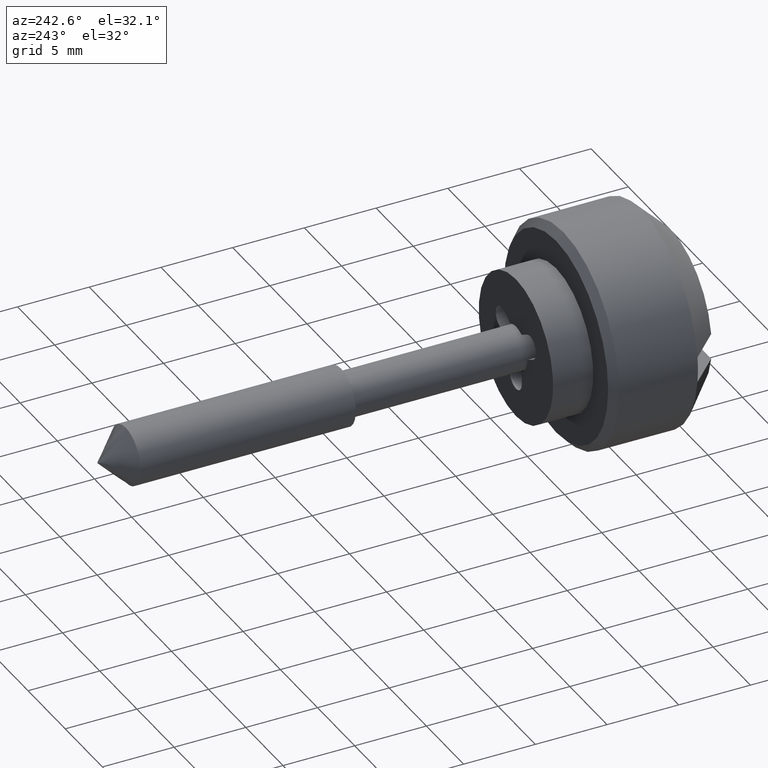
[diagram: clean part render]
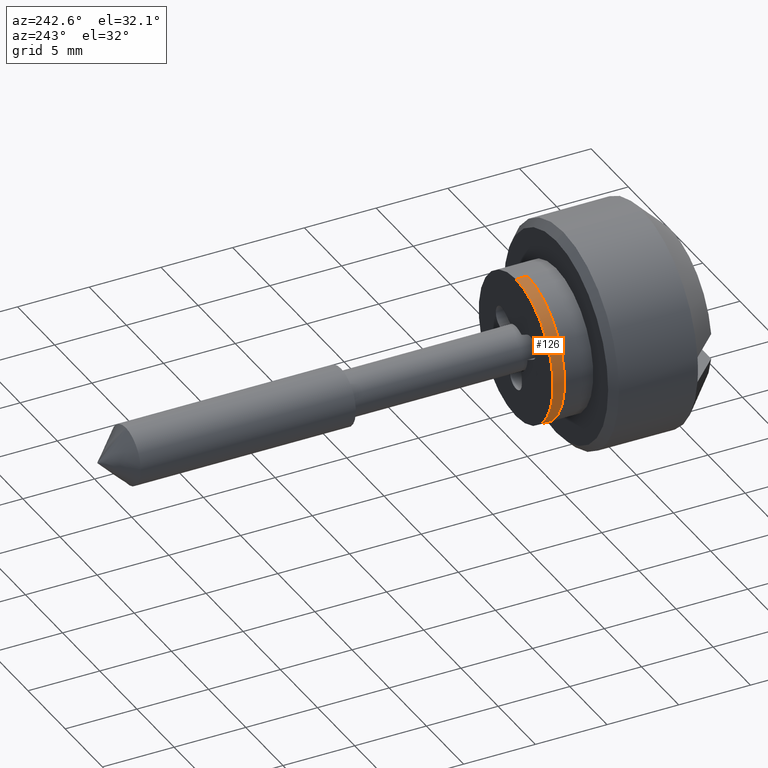
[diagram: same view with one face highlighted and labeled with its STEP entity id]
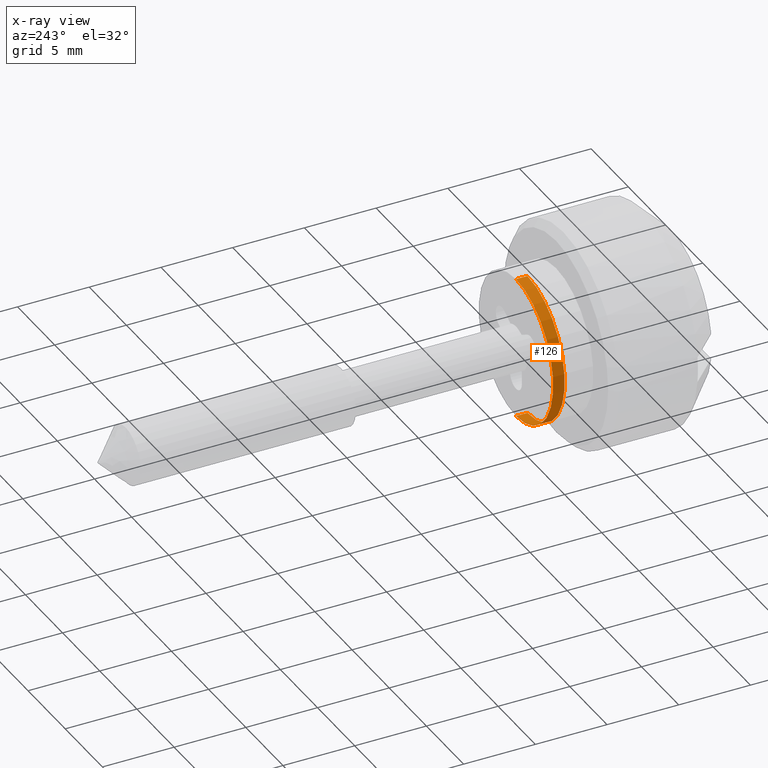
[diagram: x-ray of the same camera — body ghosted, the highlighted face saturated]
A machine part, auxiliary view. The second image highlights one B-rep face of the part: STEP entity #126.
The next image is the same camera in x-ray: the body ghosted, the highlighted face saturated — about 0% of this face is hidden behind the body in this view.
In plain terms, the highlighted cylindrical surface (partial cylindrical patch) has radius 5 mm, axis along (0, 1, 0).
Its self-contained STEP definition (entity closure, byte-faithful):
#126=ADVANCED_FACE('',(#293),#292,.T.);
#292=CYLINDRICAL_SURFACE('',#610,5.00000000000E+00);
#293=FACE_OUTER_BOUND('',#611,.T.);
#607=CARTESIAN_POINT('',(0.00000000000E+00,1.00000000000E+03,0.00000000000E+00));
#608=DIRECTION('',(-0.00000000000E+00,1.00000000000E+00,-0.00000000000E+00));
#609=DIRECTION('',(1.22464679915E-16,0.00000000000E+00,-1.00000000000E+00));
#610=AXIS2_PLACEMENT_3D('',#607,#608,#609);
#611=EDGE_LOOP('',(#842,#843,#844,#845));
#842=ORIENTED_EDGE('',*,*,#949,.T.);
#843=ORIENTED_EDGE('',*,*,#978,.F.);
#844=ORIENTED_EDGE('',*,*,#959,.F.);
#845=ORIENTED_EDGE('',*,*,#979,.T.);
#949=EDGE_CURVE('',#1093,#1092,#1100,.T.);
#959=EDGE_CURVE('',#1168,#1169,#1170,.T.);
#978=EDGE_CURVE('',#1169,#1092,#1292,.T.);
#979=EDGE_CURVE('',#1168,#1093,#1298,.T.);
#1092=VERTEX_POINT('',#1637);
#1093=VERTEX_POINT('',#1638);
#1100=CIRCLE('',#1646,5.00000000000E+00);
#1168=VERTEX_POINT('',#1686);
#1169=VERTEX_POINT('',#1687);
#1170=CIRCLE('',#1691,5.00000000000E+00);
#1292=(BOUNDED_CURVE() B_SPLINE_CURVE(1,(#1759,#1760),.UNSPECIFIED.,.F.,.F.) B_SPLINE_CURVE_WITH_KNOTS((2,2),(8.33332935974E-02,9.16666633252E-01),.UNSPECIFIED.) CURVE() GEOMETRIC_REPRESENTATION_ITEM() RATIONAL_B_SPLINE_CURVE((1.00000000000E+00,1.00000000000E+00)) REPRESENTATION_ITEM('') );
#1298=(BOUNDED_CURVE() B_SPLINE_CURVE(1,(#1761,#1762),.UNSPECIFIED.,.F.,.F.) B_SPLINE_CURVE_WITH_KNOTS((2,2),(8.33333333334E-02,9.16666666667E-01),.UNSPECIFIED.) CURVE() GEOMETRIC_REPRESENTATION_ITEM() RATIONAL_B_SPLINE_CURVE((7.50000000000E-01,7.50000000000E-01)) REPRESENTATION_ITEM('') );
#1637=CARTESIAN_POINT('',(5.92118946467E-16,8.00000000000E-01,-5.00000000000E+00));
#1638=CARTESIAN_POINT('',(0.00000000000E+00,8.00000000000E-01,5.00000000000E+00));
#1643=CARTESIAN_POINT('',(0.00000000000E+00,8.00000000000E-01,0.00000000000E+00));
#1644=DIRECTION('',(-0.00000000000E+00,-1.00000000000E+00,0.00000000000E+00));
#1645=DIRECTION('',(-1.22460635382E-16,0.00000000000E+00,1.00000000000E+00));
#1646=AXIS2_PLACEMENT_3D('',#1643,#1644,#1645);
#1686=CARTESIAN_POINT('',(0.00000000000E+00,0.00000000000E+00,5.00000000000E+00));
#1687=CARTESIAN_POINT('',(5.92118946467E-16,0.00000000000E+00,-5.00000000000E+00));
#1688=CARTESIAN_POINT('',(0.00000000000E+00,0.00000000000E+00,0.00000000000E+00));
#1689=DIRECTION('',(-0.00000000000E+00,-1.00000000000E+00,0.00000000000E+00));
#1690=DIRECTION('',(-1.22460635382E-16,0.00000000000E+00,1.00000000000E+00));
#1691=AXIS2_PLACEMENT_3D('',#1688,#1689,#1690);
#1759=CARTESIAN_POINT('',(6.12323399574E-16,-3.81465210669E-08,-5.00000000000E+00));
#1760=CARTESIAN_POINT('',(6.12323399574E-16,7.99999967922E-01,-5.00000000000E+00));
#1761=CARTESIAN_POINT('',(-2.96059473233E-16,0.00000000000E+00,5.00000000000E+00));
#1762=CARTESIAN_POINT('',(-2.96059473233E-16,8.00000000000E-01,5.00000000000E+00));